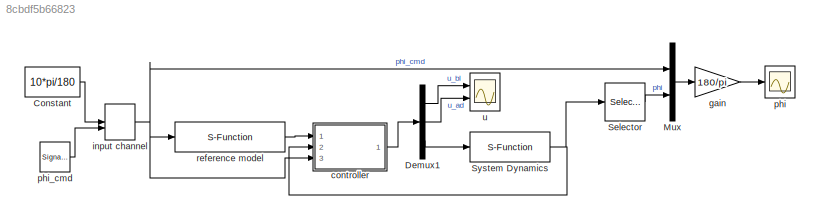
MODEL slx_8cbdf5b66823
KIND model
CONFIG AbsTol = auto
CONFIG FixedStep = auto
CONFIG InitFcn = param
CONFIG MaxStep = auto
CONFIG MinStep = auto
CONFIG RelTol = 1e-3
CONFIG SampleTimeConstraint = Unconstrained
CONFIG Solver = ode45
CONFIG SolverMode = Auto
CONFIG SolverName = ode45
CONFIG StartTime = 0.0
CONFIG StopTime = 100
BLOCK [Constant] Constant
  Value = 10*pi/180
BLOCK [Demux] Demux1
  DisplayOption = bar
  Outputs = [1; 1; 1]
  Ports = [1, 3]
BLOCK [Mux] Mux
  DisplayOption = bar
  Inputs = 2
  Ports = [2, 1]
BLOCK [Selector] Selector
  IndexOptions = Index vector (dialog)
  Indices = [1]
  InputPortWidth = 2
  OutputSizes = 1
  Ports = [1, 1]
BLOCK [S-Function] System Dynamics
  EnableBusSupport = off
  FunctionName = dynamics
  Parameters = P
  Ports = [1, 1]
  SFunctionDeploymentMode = off
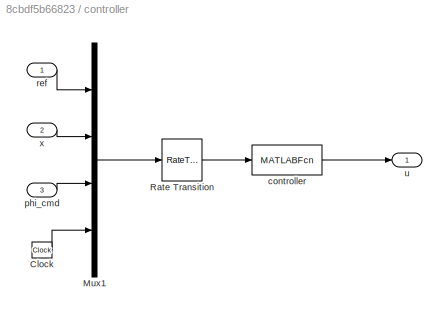
BLOCK [SubSystem] controller
  Ports = [3, 1]
  RequestExecContextInheritance = off
  Variant = off
BLOCK [Clock] controller/Clock
BLOCK [Mux] controller/Mux1
  DisplayOption = bar
  Ports = [4, 1]
BLOCK [RateTransition] controller/Rate Transition
  OutPortSampleTime = P.Ts
BLOCK [MATLABFcn] controller/controller
  MATLABFcn = ctrl(u,P)
  OutputDimensions = 3
  Ports = [1, 1]
BLOCK [Inport] controller/phi_cmd
  IconDisplay = Port number
  Port = 3
BLOCK [Inport] controller/ref
  IconDisplay = Port number
BLOCK [Outport] controller/u
  IconDisplay = Port number
BLOCK [Inport] controller/x
  IconDisplay = Port number
  Port = 2
BLOCK [Gain] gain
  Gain = 180/pi
  OutDataTypeStr = Inherit: Inherit via internal rule
  ParamDataTypeStr = Inherit: Inherit via internal rule
  SaturateOnIntegerOverflow = off
BLOCK [ManualSwitch] input channel
  CurrentSetting = 0
BLOCK [Scope] phi
  Ports = [1]
  ScopeSpecificationString = Simulink.scopes.TimeScopeBlockCfg('CurrentConfiguration', extmgr.ConfigurationSet(extmgr.Configuration('Core','General UI',true),extmgr.Configuration('Core','Source UI',true),extmgr.Configuration('Sources','WiredSimulink',true,'DataLoggingVariableName','ScopeData1','DataLoggingSaveFormat','StructureWithTime','DataLoggingDecimation','1','DataLoggingDecimateData',true),extmgr.Configuration('Visuals'...<+1726ch>
BLOCK [SignalGenerator] phi_cmd
  Amplitude = 20*pi/180
  Frequency = .05
  Ports = [0, 1]
  WaveForm = square
BLOCK [S-Function] reference model
  EnableBusSupport = off
  FunctionName = reference
  Parameters = P
  Ports = [1, 1]
  SFunctionDeploymentMode = off
BLOCK [Scope] u
  NumInputPorts = 2
  Ports = [2]
  ScopeSpecificationString = Simulink.scopes.TimeScopeBlockCfg('CurrentConfiguration', extmgr.ConfigurationSet(extmgr.Configuration('Core','General UI',true),extmgr.Configuration('Core','Source UI',true),extmgr.Configuration('Sources','WiredSimulink',true,'DataLoggingVariableName','ScopeData2','DataLoggingSaveFormat','StructureWithTime','DataLoggingDecimation','1','DataLoggingDecimateData',true),extmgr.Configuration('Visuals'...<+1676ch>
LINE Constant:1 -> input channel:1
LINE Demux1:1 -> u:1
LINE Demux1:2 -> u:2
LINE Demux1:3 -> System Dynamics:1
LINE Mux:1 -> gain:1
LINE Selector:1 -> Mux:2
NET System Dynamics:1 -> Selector:1, controller:2
LINE controller/Clock:1 -> controller/Mux1:4
LINE controller/Mux1:1 -> controller/Rate Transition:1
LINE controller/Rate Transition:1 -> controller/controller:1
LINE controller/controller:1 -> controller/u:1
LINE controller/phi_cmd:1 -> controller/Mux1:3
LINE controller/ref:1 -> controller/Mux1:1
LINE controller/x:1 -> controller/Mux1:2
LINE controller:1 -> Demux1:1
LINE gain:1 -> phi:1
NET input channel:1 -> Mux:1, controller:3, reference model:1
LINE phi_cmd:1 -> input channel:2
LINE reference model:1 -> controller:1
note: NET lines group one-source signal fan-out (src -> all destinations, sorted); 1:1 wires keep LINE
